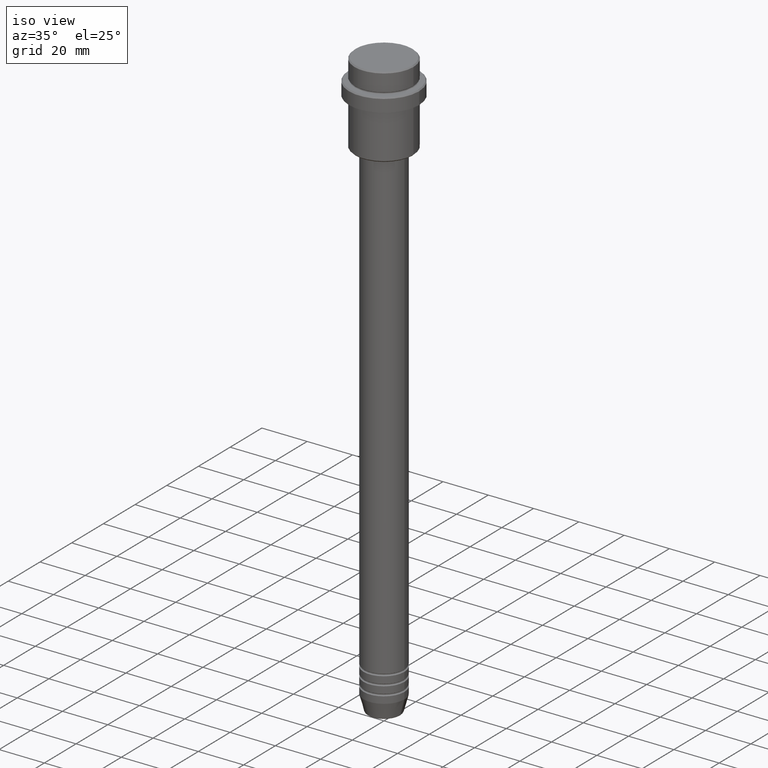
[diagram: clean part render]
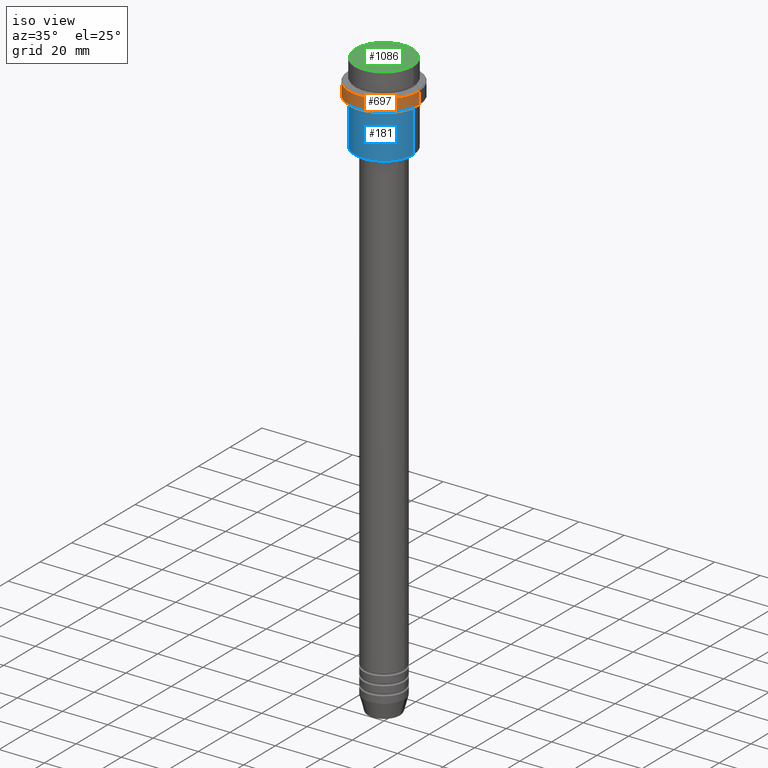
[diagram: same view with three faces highlighted in distinct colors, each labeled with its STEP entity id]
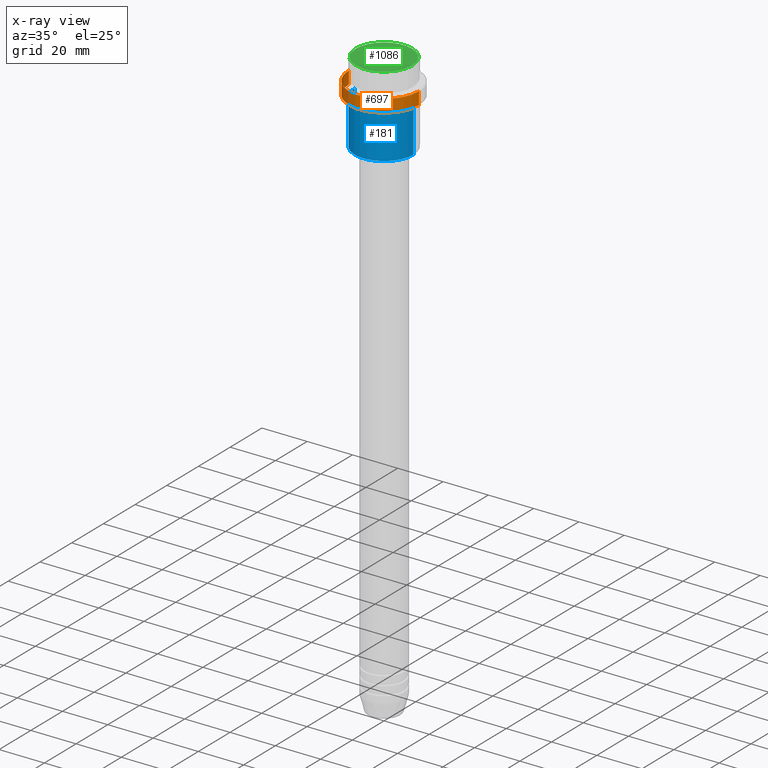
[diagram: x-ray of the same camera — body ghosted, the three highlighted faces saturated]
A machine part, iso view with three faces highlighted in distinct colors.
The next image is the same camera in x-ray (body ghosted, the three faces saturated) — at least one of them is partly hidden behind the body in this view.
Their STEP definitions:

[orange] entity #697 — the highlighted cylindrical surface (partial cylindrical patch) has radius 15.5 mm, axis along (-0, -0, 1).
#2 = AXIS2_PLACEMENT_3D ( 'NONE', #538, #816, #922 ) ;
#19 = EDGE_CURVE ( 'NONE', #702, #1016, #571, .T. ) ;
#22 = CIRCLE ( 'NONE', #1239, 15.50000000000000000 ) ;
#124 = CARTESIAN_POINT ( 'NONE',  ( -15.50000000000000000, 1.898202538678397557E-15, -15.00000000000000000 ) ) ;
#252 = CARTESIAN_POINT ( 'NONE',  ( -15.50000000000000000, 1.898202538678397557E-15, 0.000000000000000000 ) ) ;
#307 = DIRECTION ( 'NONE',  ( 1.000000000000000000, 0.000000000000000000, 0.000000000000000000 ) ) ;
#315 = CYLINDRICAL_SURFACE ( 'NONE', #2, 15.50000000000000000 ) ;
#381 = VECTOR ( 'NONE', #1111, 1000.000000000000000 ) ;
#387 = CIRCLE ( 'NONE', #573, 15.50000000000000000 ) ;
#394 = CARTESIAN_POINT ( 'NONE',  ( 15.50000000000000000, 0.000000000000000000, 0.000000000000000000 ) ) ;
#408 = CARTESIAN_POINT ( 'NONE',  ( -15.50000000000000000, 1.898202538678397557E-15, -9.500000000000039080 ) ) ;
#501 = ORIENTED_EDGE ( 'NONE', *, *, #604, .T. ) ;
#538 = CARTESIAN_POINT ( 'NONE',  ( 0.000000000000000000, 0.000000000000000000, 0.000000000000000000 ) ) ;
#556 = CARTESIAN_POINT ( 'NONE',  ( 0.000000000000000000, 0.000000000000000000, -15.00000000000000000 ) ) ;
#571 = LINE ( 'NONE', #252, #381 ) ;
#573 = AXIS2_PLACEMENT_3D ( 'NONE', #1325, #1227, #1335 ) ;
#580 = CARTESIAN_POINT ( 'NONE',  ( 15.50000000000000000, 0.000000000000000000, -15.00000000000000000 ) ) ;
#582 = ORIENTED_EDGE ( 'NONE', *, *, #832, .T. ) ;
#604 = EDGE_CURVE ( 'NONE', #702, #745, #22, .T. ) ;
#684 = VERTEX_POINT ( 'NONE', #973 ) ;
#691 = VECTOR ( 'NONE', #958, 1000.000000000000000 ) ;
#697 = ADVANCED_FACE ( 'NONE', ( #885 ), #315, .T. ) ;
#702 = VERTEX_POINT ( 'NONE', #124 ) ;
#724 = EDGE_CURVE ( 'NONE', #684, #1016, #387, .T. ) ;
#745 = VERTEX_POINT ( 'NONE', #580 ) ;
#751 = DIRECTION ( 'NONE',  ( -0.000000000000000000, -0.000000000000000000, 1.000000000000000000 ) ) ;
#816 = DIRECTION ( 'NONE',  ( -0.000000000000000000, -0.000000000000000000, 1.000000000000000000 ) ) ;
#832 = EDGE_CURVE ( 'NONE', #745, #684, #1359, .T. ) ;
#885 = FACE_OUTER_BOUND ( 'NONE', #889, .T. ) ;
#889 = EDGE_LOOP ( 'NONE', ( #1396, #501, #582, #1011 ) ) ;
#922 = DIRECTION ( 'NONE',  ( 1.000000000000000000, 0.000000000000000000, 0.000000000000000000 ) ) ;
#958 = DIRECTION ( 'NONE',  ( -0.000000000000000000, -0.000000000000000000, 1.000000000000000000 ) ) ;
#973 = CARTESIAN_POINT ( 'NONE',  ( 15.50000000000000000, 0.000000000000000000, -9.500000000000039080 ) ) ;
#1011 = ORIENTED_EDGE ( 'NONE', *, *, #724, .T. ) ;
#1016 = VERTEX_POINT ( 'NONE', #408 ) ;
#1111 = DIRECTION ( 'NONE',  ( -0.000000000000000000, -0.000000000000000000, 1.000000000000000000 ) ) ;
#1227 = DIRECTION ( 'NONE',  ( 0.000000000000000000, 0.000000000000000000, -1.000000000000000000 ) ) ;
#1239 = AXIS2_PLACEMENT_3D ( 'NONE', #556, #751, #307 ) ;
#1325 = CARTESIAN_POINT ( 'NONE',  ( 0.000000000000000000, 0.000000000000000000, -9.500000000000039080 ) ) ;
#1335 = DIRECTION ( 'NONE',  ( 1.000000000000000000, 0.000000000000000000, 0.000000000000000000 ) ) ;
#1359 = LINE ( 'NONE', #394, #691 ) ;
#1396 = ORIENTED_EDGE ( 'NONE', *, *, #19, .F. ) ;

[blue] entity #181 — the highlighted cylindrical surface (edge-blend (fillet) strip) has radius 13 mm, axis along (-0, -0, 1).
#142 = VERTEX_POINT ( 'NONE', #1294 ) ;
#178 = VECTOR ( 'NONE', #334, 1000.000000000000000 ) ;
#181 = ADVANCED_FACE ( 'NONE', ( #625 ), #1285, .T. ) ;
#194 = ORIENTED_EDGE ( 'NONE', *, *, #1156, .T. ) ;
#269 = CIRCLE ( 'NONE', #639, 13.00000000000000000 ) ;
#298 = CARTESIAN_POINT ( 'NONE',  ( 0.000000000000000000, 0.000000000000000000, 0.000000000000000000 ) ) ;
#313 = AXIS2_PLACEMENT_3D ( 'NONE', #298, #649, #760 ) ;
#322 = EDGE_LOOP ( 'NONE', ( #844, #1262, #194, #490 ) ) ;
#334 = DIRECTION ( 'NONE',  ( -0.000000000000000000, -0.000000000000000000, 1.000000000000000000 ) ) ;
#365 = CIRCLE ( 'NONE', #1169, 13.00000000000000000 ) ;
#448 = DIRECTION ( 'NONE',  ( -1.000000000000000000, 0.000000000000000000, 0.000000000000000000 ) ) ;
#465 = DIRECTION ( 'NONE',  ( -0.000000000000000000, -0.000000000000000000, 1.000000000000000000 ) ) ;
#487 = VERTEX_POINT ( 'NONE', #965 ) ;
#490 = ORIENTED_EDGE ( 'NONE', *, *, #584, .F. ) ;
#522 = DIRECTION ( 'NONE',  ( 1.000000000000000000, 0.000000000000000000, 0.000000000000000000 ) ) ;
#547 = CARTESIAN_POINT ( 'NONE',  ( 0.000000000000000000, 0.000000000000000000, -16.00000000000000000 ) ) ;
#584 = EDGE_CURVE ( 'NONE', #142, #801, #365, .T. ) ;
#590 = LINE ( 'NONE', #1027, #1374 ) ;
#602 = EDGE_CURVE ( 'NONE', #487, #918, #269, .T. ) ;
#625 = FACE_OUTER_BOUND ( 'NONE', #322, .T. ) ;
#639 = AXIS2_PLACEMENT_3D ( 'NONE', #660, #979, #448 ) ;
#649 = DIRECTION ( 'NONE',  ( -0.000000000000000000, -0.000000000000000000, 1.000000000000000000 ) ) ;
#660 = CARTESIAN_POINT ( 'NONE',  ( 0.000000000000000000, 0.000000000000000000, -35.50000000000002842 ) ) ;
#749 = EDGE_CURVE ( 'NONE', #487, #142, #590, .T. ) ;
#760 = DIRECTION ( 'NONE',  ( 1.000000000000000000, 0.000000000000000000, 0.000000000000000000 ) ) ;
#801 = VERTEX_POINT ( 'NONE', #1344 ) ;
#824 = CARTESIAN_POINT ( 'NONE',  ( 13.00000000000000000, 0.000000000000000000, -35.50000000000002842 ) ) ;
#844 = ORIENTED_EDGE ( 'NONE', *, *, #749, .F. ) ;
#876 = LINE ( 'NONE', #1209, #178 ) ;
#892 = DIRECTION ( 'NONE',  ( -0.000000000000000000, -0.000000000000000000, 1.000000000000000000 ) ) ;
#918 = VERTEX_POINT ( 'NONE', #824 ) ;
#965 = CARTESIAN_POINT ( 'NONE',  ( -13.00000000000000000, 1.592040838891559095E-15, -35.50000000000002842 ) ) ;
#979 = DIRECTION ( 'NONE',  ( -0.000000000000000000, -0.000000000000000000, 1.000000000000000000 ) ) ;
#1027 = CARTESIAN_POINT ( 'NONE',  ( -13.00000000000000000, 1.592040838891559095E-15, 0.000000000000000000 ) ) ;
#1156 = EDGE_CURVE ( 'NONE', #918, #801, #876, .T. ) ;
#1169 = AXIS2_PLACEMENT_3D ( 'NONE', #547, #892, #522 ) ;
#1209 = CARTESIAN_POINT ( 'NONE',  ( 13.00000000000000000, 0.000000000000000000, 0.000000000000000000 ) ) ;
#1262 = ORIENTED_EDGE ( 'NONE', *, *, #602, .T. ) ;
#1285 = CYLINDRICAL_SURFACE ( 'NONE', #313, 13.00000000000000000 ) ;
#1294 = CARTESIAN_POINT ( 'NONE',  ( -13.00000000000000000, 1.592040838891559095E-15, -16.00000000000000000 ) ) ;
#1344 = CARTESIAN_POINT ( 'NONE',  ( 13.00000000000000000, 0.000000000000000000, -16.00000000000000000 ) ) ;
#1374 = VECTOR ( 'NONE', #465, 1000.000000000000000 ) ;

[green] entity #1086 — the highlighted planar face has unit normal (0, -0, 1).
#5 = DIRECTION ( 'NONE',  ( 1.000000000000000000, 0.000000000000000000, 0.000000000000000000 ) ) ;
#93 = DIRECTION ( 'NONE',  ( -0.000000000000000000, -0.000000000000000000, 1.000000000000000000 ) ) ;
#104 = CARTESIAN_POINT ( 'NONE',  ( 12.50000000000004086, 1.561424668912877675E-15, 0.000000000000000000 ) ) ;
#215 = PLANE ( 'NONE',  #794 ) ;
#221 = DIRECTION ( 'NONE',  ( 1.000000000000000000, 0.000000000000000000, 0.000000000000000000 ) ) ;
#282 = VERTEX_POINT ( 'NONE', #446 ) ;
#306 = DIRECTION ( 'NONE',  ( 0.000000000000000000, -0.000000000000000000, 1.000000000000000000 ) ) ;
#395 = DIRECTION ( 'NONE',  ( -0.000000000000000000, -0.000000000000000000, 1.000000000000000000 ) ) ;
#435 = EDGE_CURVE ( 'NONE', #282, #654, #456, .T. ) ;
#446 = CARTESIAN_POINT ( 'NONE',  ( -12.50000000000004086, 0.000000000000000000, 0.000000000000000000 ) ) ;
#456 = CIRCLE ( 'NONE', #641, 12.50000000000004086 ) ;
#618 = AXIS2_PLACEMENT_3D ( 'NONE', #1416, #93, #221 ) ;
#641 = AXIS2_PLACEMENT_3D ( 'NONE', #814, #395, #850 ) ;
#646 = EDGE_CURVE ( 'NONE', #654, #282, #1397, .T. ) ;
#654 = VERTEX_POINT ( 'NONE', #104 ) ;
#728 = ORIENTED_EDGE ( 'NONE', *, *, #646, .T. ) ;
#763 = CARTESIAN_POINT ( 'NONE',  ( 0.000000000000000000, 0.000000000000000000, 0.000000000000000000 ) ) ;
#794 = AXIS2_PLACEMENT_3D ( 'NONE', #763, #306, #5 ) ;
#814 = CARTESIAN_POINT ( 'NONE',  ( 0.000000000000000000, 0.000000000000000000, 0.000000000000000000 ) ) ;
#850 = DIRECTION ( 'NONE',  ( 1.000000000000000000, 0.000000000000000000, 0.000000000000000000 ) ) ;
#871 = FACE_OUTER_BOUND ( 'NONE', #1308, .T. ) ;
#1086 = ADVANCED_FACE ( 'NONE', ( #871 ), #215, .T. ) ;
#1186 = ORIENTED_EDGE ( 'NONE', *, *, #435, .T. ) ;
#1308 = EDGE_LOOP ( 'NONE', ( #1186, #728 ) ) ;
#1397 = CIRCLE ( 'NONE', #618, 12.50000000000004086 ) ;
#1416 = CARTESIAN_POINT ( 'NONE',  ( 0.000000000000000000, 0.000000000000000000, 0.000000000000000000 ) ) ;